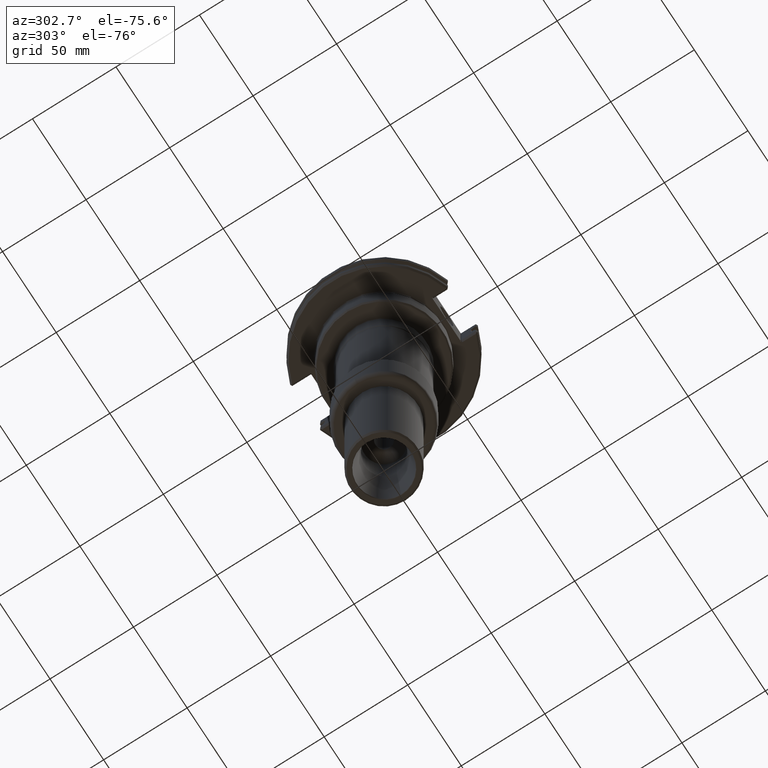
[diagram: clean part render]
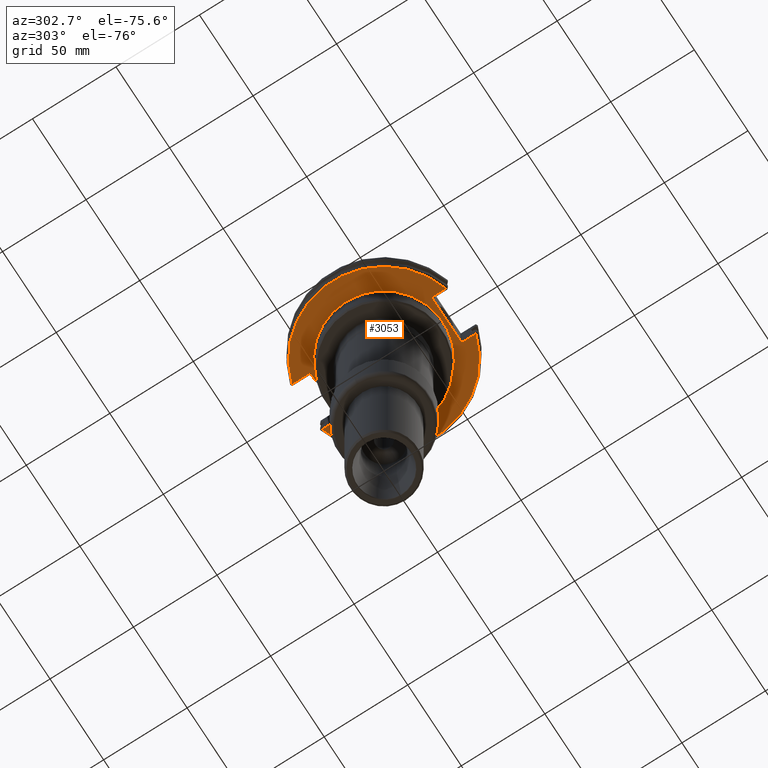
[diagram: same view with one face highlighted and labeled with its STEP entity id]
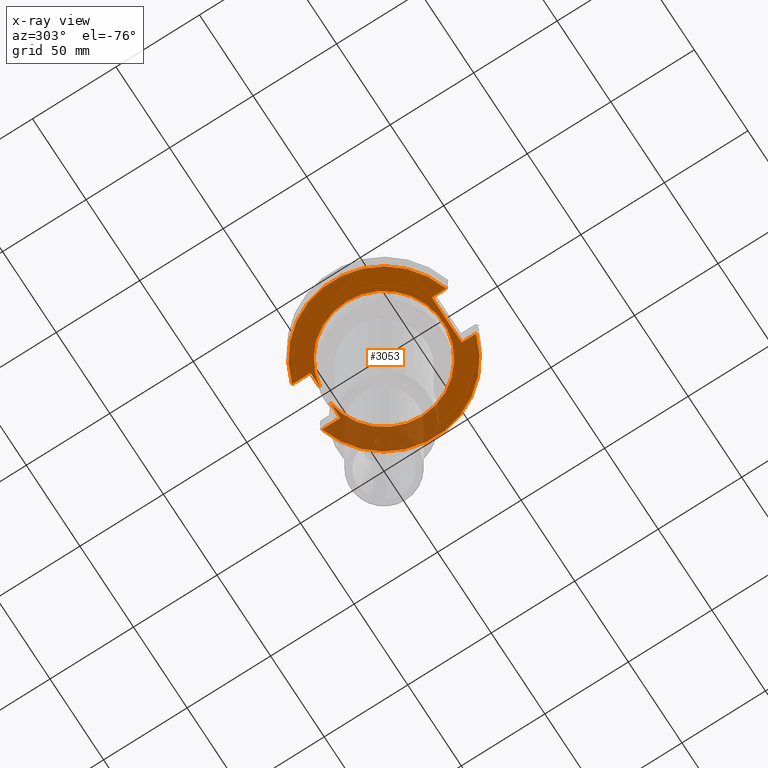
[diagram: x-ray of the same camera — body ghosted, the highlighted face saturated]
A machine part, auxiliary view. The second image highlights one B-rep face of the part: STEP entity #3053.
The next image is the same camera in x-ray: the body ghosted, the highlighted face saturated — about 27% of this face is hidden behind the body in this view.
In plain terms, the highlighted planar face has unit normal (0, 0, -1).
Its self-contained STEP definition (entity closure, byte-faithful):
#31=ELLIPSE('',#3219,0.707106781186547,0.5);
#32=ELLIPSE('',#3220,0.707106781186547,0.5);
#33=ELLIPSE('',#3222,0.707106781186546,0.5);
#34=ELLIPSE('',#3223,0.707106781186548,0.5);
#53=LINE('',#4187,#126);
#54=LINE('',#4188,#127);
#56=LINE('',#4192,#129);
#57=LINE('',#4197,#130);
#58=LINE('',#4201,#131);
#59=LINE('',#4205,#132);
#60=LINE('',#4209,#133);
#126=VECTOR('',#3529,1000.);
#127=VECTOR('',#3530,1000.);
#129=VECTOR('',#3534,1000.);
#130=VECTOR('',#3537,1000.);
#131=VECTOR('',#3540,1000.);
#132=VECTOR('',#3543,1000.);
#133=VECTOR('',#3546,1000.);
#365=ORIENTED_EDGE('',*,*,#900,.T.);
#366=ORIENTED_EDGE('',*,*,#901,.F.);
#367=ORIENTED_EDGE('',*,*,#902,.T.);
#368=ORIENTED_EDGE('',*,*,#903,.F.);
#369=ORIENTED_EDGE('',*,*,#904,.F.);
#370=ORIENTED_EDGE('',*,*,#905,.F.);
#371=ORIENTED_EDGE('',*,*,#906,.T.);
#372=ORIENTED_EDGE('',*,*,#907,.F.);
#373=ORIENTED_EDGE('',*,*,#908,.T.);
#374=ORIENTED_EDGE('',*,*,#909,.F.);
#375=ORIENTED_EDGE('',*,*,#898,.F.);
#376=ORIENTED_EDGE('',*,*,#890,.T.);
#377=ORIENTED_EDGE('',*,*,#897,.F.);
#378=ORIENTED_EDGE('',*,*,#910,.F.);
#890=EDGE_CURVE('',#1160,#1159,#1365,.T.);
#897=EDGE_CURVE('',#1167,#1159,#53,.T.);
#898=EDGE_CURVE('',#1160,#1168,#54,.T.);
#900=EDGE_CURVE('',#1169,#1170,#56,.T.);
#901=EDGE_CURVE('',#1171,#1170,#1366,.T.);
#902=EDGE_CURVE('',#1171,#1172,#57,.T.);
#903=EDGE_CURVE('',#1173,#1172,#31,.T.);
#904=EDGE_CURVE('',#1174,#1173,#58,.T.);
#905=EDGE_CURVE('',#1175,#1174,#32,.T.);
#906=EDGE_CURVE('',#1175,#1176,#59,.T.);
#907=EDGE_CURVE('',#1177,#1176,#1367,.T.);
#908=EDGE_CURVE('',#1177,#1178,#60,.T.);
#909=EDGE_CURVE('',#1168,#1178,#33,.T.);
#910=EDGE_CURVE('',#1169,#1167,#34,.T.);
#1159=VERTEX_POINT('',#4170);
#1160=VERTEX_POINT('',#4171);
#1167=VERTEX_POINT('',#4186);
#1168=VERTEX_POINT('',#4189);
#1169=VERTEX_POINT('',#4193);
#1170=VERTEX_POINT('',#4194);
#1171=VERTEX_POINT('',#4196);
#1172=VERTEX_POINT('',#4198);
#1173=VERTEX_POINT('',#4200);
#1174=VERTEX_POINT('',#4202);
#1175=VERTEX_POINT('',#4204);
#1176=VERTEX_POINT('',#4206);
#1177=VERTEX_POINT('',#4208);
#1178=VERTEX_POINT('',#4210);
#1365=CIRCLE('',#3215,35.4477073171952);
#1366=CIRCLE('',#3218,48.21);
#1367=CIRCLE('',#3221,48.21);
#1503=EDGE_LOOP('',(#365,#366,#367,#368,#369,#370,#371,#372,#373,#374,#375,
#376,#377,#378));
#1736=FACE_BOUND('',#1503,.T.);
#1960=PLANE('',#3217);
#3053=ADVANCED_FACE('',(#1736),#1960,.T.);
#3215=AXIS2_PLACEMENT_3D('',#4172,#3519,#3520);
#3217=AXIS2_PLACEMENT_3D('',#4191,#3532,#3533);
#3218=AXIS2_PLACEMENT_3D('',#4195,#3535,#3536);
#3219=AXIS2_PLACEMENT_3D('',#4199,#3538,#3539);
#3220=AXIS2_PLACEMENT_3D('',#4203,#3541,#3542);
#3221=AXIS2_PLACEMENT_3D('',#4207,#3544,#3545);
#3222=AXIS2_PLACEMENT_3D('',#4211,#3547,#3548);
#3223=AXIS2_PLACEMENT_3D('',#4212,#3549,#3550);
#3519=DIRECTION('',(0.,0.,1.));
#3520=DIRECTION('',(1.,0.,0.));
#3529=DIRECTION('',(-1.,0.,0.));
#3530=DIRECTION('',(-1.,0.,0.));
#3532=DIRECTION('',(0.,0.,-1.));
#3533=DIRECTION('',(-1.,0.,0.));
#3534=DIRECTION('',(1.39232066482068E-16,1.,0.));
#3535=DIRECTION('',(0.,0.,1.));
#3536=DIRECTION('',(1.,0.,0.));
#3537=DIRECTION('',(1.03573580073726E-15,1.,0.));
#3538=DIRECTION('',(0.,0.,-1.));
#3539=DIRECTION('',(-1.,0.,0.));
#3540=DIRECTION('',(1.,0.,0.));
#3541=DIRECTION('',(0.,0.,-1.));
#3542=DIRECTION('',(-1.,0.,0.));
#3543=DIRECTION('',(6.90490533824839E-16,-1.,0.));
#3544=DIRECTION('',(0.,0.,1.));
#3545=DIRECTION('',(1.,0.,0.));
#3546=DIRECTION('',(-1.39232066482068E-16,-1.,0.));
#3547=DIRECTION('',(0.,0.,-1.));
#3548=DIRECTION('',(1.,0.,0.));
#3549=DIRECTION('',(0.,0.,-1.));
#3550=DIRECTION('',(1.,0.,0.));
#4170=CARTESIAN_POINT('',(4.50714477752083,35.16,-19.04));
#4171=CARTESIAN_POINT('',(-4.50714477752087,35.16,-19.04));
#4172=CARTESIAN_POINT('',(-1.67568421527332E-14,0.,-19.04));
#4186=CARTESIAN_POINT('',(13.2478932188135,35.16,-19.04));
#4187=CARTESIAN_POINT('',(49.35,35.16,-19.04));
#4188=CARTESIAN_POINT('',(49.35,35.16,-19.04));
#4189=CARTESIAN_POINT('',(-13.2478932188135,35.16,-19.04));
#4191=CARTESIAN_POINT('',(49.35,0.,-19.04));
#4192=CARTESIAN_POINT('',(13.955,47.6192237966979,-19.04));
#4193=CARTESIAN_POINT('',(13.955,35.66,-19.04));
#4194=CARTESIAN_POINT('',(13.955,46.146094905203,-19.04));
#4195=CARTESIAN_POINT('',(0.,0.,-19.04));
#4196=CARTESIAN_POINT('',(13.955,-46.146094905203,-19.04));
#4197=CARTESIAN_POINT('',(13.955,-37.57,-19.04));
#4198=CARTESIAN_POINT('',(13.955,-38.07,-19.04));
#4199=CARTESIAN_POINT('',(13.2478932188135,-38.07,-19.04));
#4200=CARTESIAN_POINT('',(13.2478932188135,-37.57,-19.04));
#4201=CARTESIAN_POINT('',(49.35,-37.57,-19.04));
#4202=CARTESIAN_POINT('',(-13.2478932188135,-37.57,-19.04));
#4203=CARTESIAN_POINT('',(-13.2478932188135,-38.07,-19.04));
#4204=CARTESIAN_POINT('',(-13.955,-38.07,-19.04));
#4205=CARTESIAN_POINT('',(-13.955,-47.6192237966979,-19.04));
#4206=CARTESIAN_POINT('',(-13.955,-46.146094905203,-19.04));
#4207=CARTESIAN_POINT('',(0.,0.,-19.04));
#4208=CARTESIAN_POINT('',(-13.955,46.146094905203,-19.04));
#4209=CARTESIAN_POINT('',(-13.955,35.16,-19.04));
#4210=CARTESIAN_POINT('',(-13.955,35.66,-19.04));
#4211=CARTESIAN_POINT('',(-13.2478932188135,35.66,-19.04));
#4212=CARTESIAN_POINT('',(13.2478932188135,35.66,-19.04));